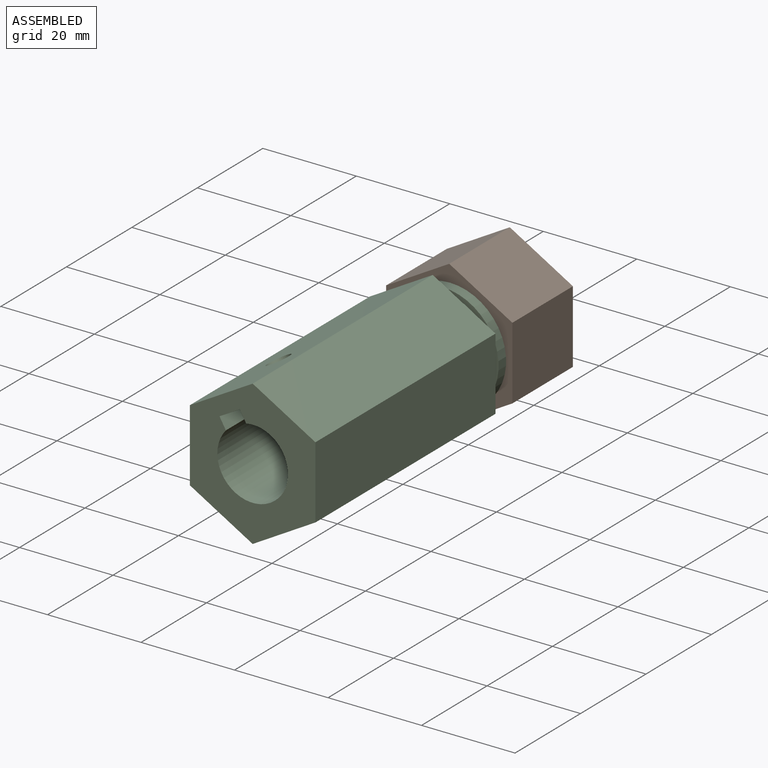
[diagram: assembled view]
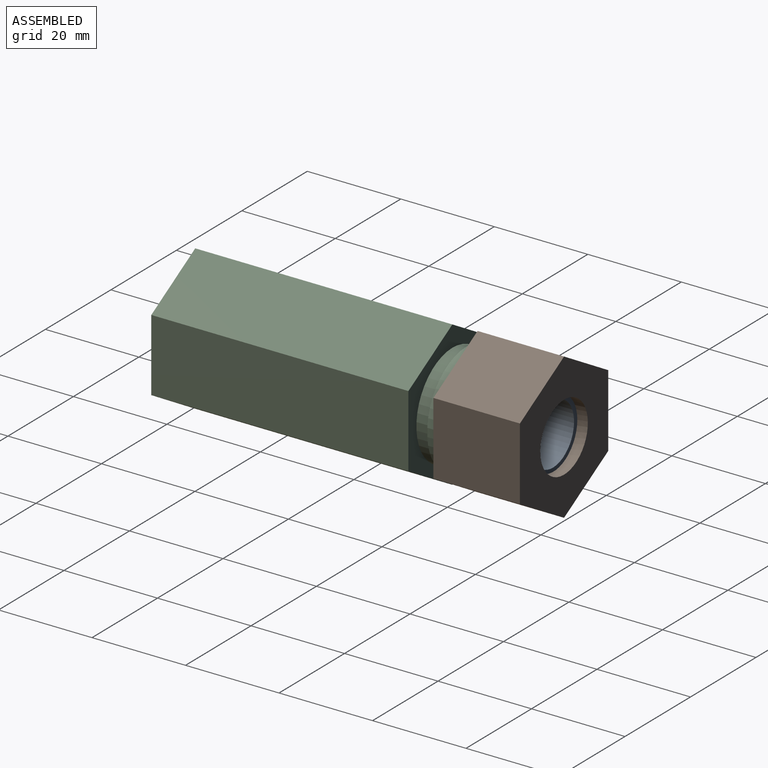
[diagram: assembled view, second angle]
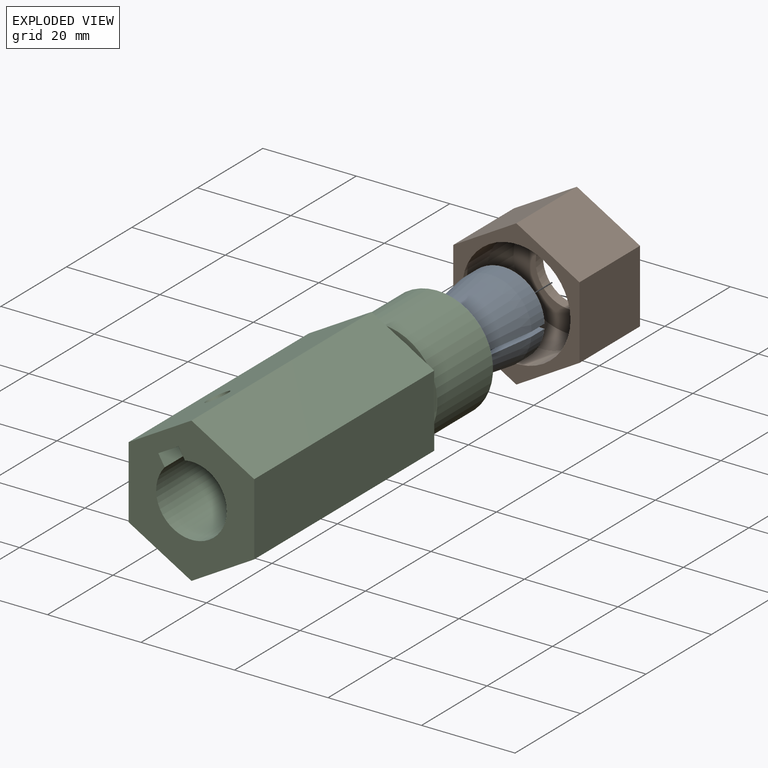
[diagram: exploded view]
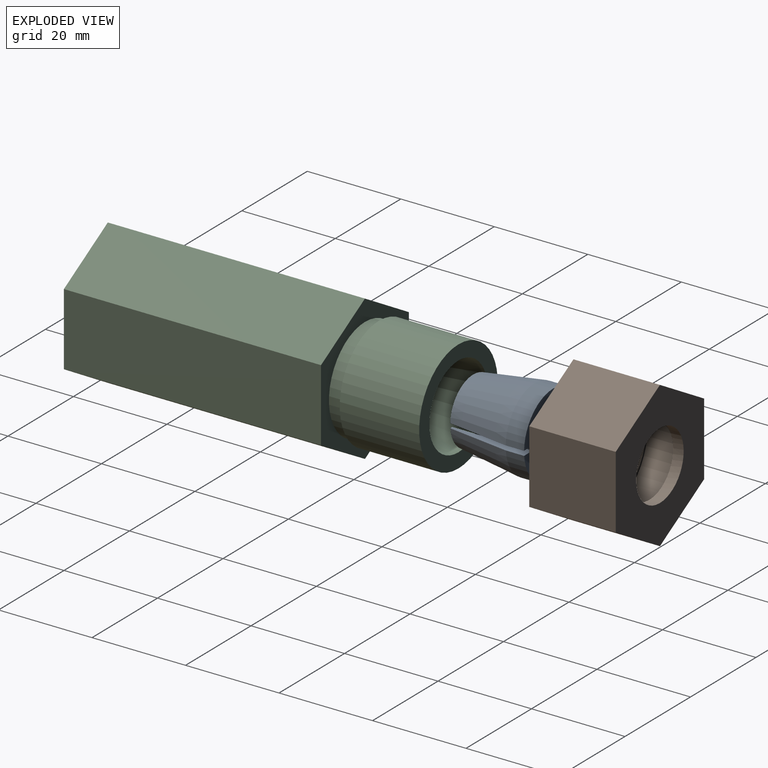
[diagram: exploded view, second angle]
ASSEMBLY  parts=3 mates=3
PART A: 7 faces, bbox 17.1x17.7x17.7 mm
  f0: plane 14x13.98mm, normal (-1,0,0), area 24.1mm2, adj f1,f3,f5,f6
  f1: cylinder r=6.41mm len=17.1mm, axis (-1,0,0), area 672mm2, adj f0,f4,f5,f6
  f2: cylinder r=8.85mm len=17.7mm, axis (-1,0,0), area 215mm2, adj f3,f4,f5,f6
  f3: cone r=8.85mm half-angle=8deg, axis (1,0,0), area 648.5mm2, adj f0,f2,f5,f6
  f4: plane 17.7x17.69mm, normal (1,0,0), area 114.4mm2, adj f1,f2,f5,f6
  f5: plane 17.11x2.46mm, normal (0,-1,0), area 29.5mm2, adj f0,f1,f2,f3,f4
  f6: plane 17.11x2.46mm, normal (0,1,0), area 29.5mm2, adj f0,f1,f2,f3,f4
PART B: 13 faces, bbox 31.2x18.5x27 mm
  f0: plane 18.5x15.59mm, normal (0,0,1), area 288.4mm2, adj f1,f5,f6,f7
  f1: plane 18.5x13.5mm, normal (-0.87,0,0.5), area 288.4mm2, adj f0,f2,f6,f7
  f2: plane 18.5x13.5mm, normal (-0.87,0,-0.5), area 288.4mm2, adj f1,f3,f6,f7
  f3: plane 18.5x15.59mm, normal (0,0,-1), area 288.4mm2, adj f2,f4,f6,f7
  f4: plane 18.5x13.5mm, normal (0.87,0,-0.5), area 288.4mm2, adj f3,f5,f6,f7
  f5: plane 18.5x13.5mm, normal (0.87,0,0.5), area 288.4mm2, adj f0,f4,f6,f7
  f6: plane 31.18x27mm, normal (0,-1,0), area 466.2mm2, adj f0,f1,f2,f3,f4,f5,f8
  f7: plane 31.18x27mm, normal (0,1,0), area 210.3mm2, adj f0,f1,f2,f3,f4,f5,f10
  f8: cylinder r=7.25mm len=14.5mm, axis (0,-1,0), area 102.5mm2, adj f6,f9
  f9: plane 24x24mm, normal (0,1,0), area 287.3mm2, adj f8,f12
  f10: cylinder r=11.58mm len=23.15mm, axis (0,1,0), area 545.6mm2, adj f7,f11
  f11: plane 24x24mm, normal (0,-1,0), area 31.3mm2, adj f10,f12
  f12: cylinder r=12mm len=24mm, axis (0,1,0), area 659.7mm2, adj f9,f11
PART C: 22 faces, bbox 26.8x75x31 mm
  f0: plane 17.5x4.33mm, normal (0.5,0,-0.87), area 77.7mm2, adj f1,f14,f15,f20
  f1: plane 31x26.85mm, normal (0,-1,0), area 432.6mm2, adj f0,f2,f8,f9,f10,f11,f12,f13
  f2: cylinder r=7.56mm len=40mm, axis (0,1,0), area 1720.9mm2, adj f1,f14,f15,f16,f19
  f3: plane 31x26.85mm, normal (0,1,0), area 244.1mm2, adj f5,f8,f9,f10,f11,f12,f13
  f4: cylinder r=12mm len=24mm, axis (0,-1,0), area 1281.8mm2, adj f6,f7
  f5: cylinder r=11mm len=22mm, axis (0,-1,0), area 207.3mm2, adj f3,f6
  f6: plane 24x24mm, normal (0,-1,0), area 72.3mm2, adj f4,f5
  f7: plane 24x24mm, normal (0,1,0), area 204.9mm2, adj f4,f21
  f8: plane 55x13.42mm, normal (-0.5,0,0.87), area 832.9mm2, adj f1,f3,f9,f13,f20
  f9: plane 55x15.5mm, normal (-1,0,0), area 852.5mm2, adj f1,f3,f8,f10
  f10: plane 55x13.42mm, normal (-0.5,0,-0.87), area 852.5mm2, adj f1,f3,f9,f11
  f11: plane 55x13.42mm, normal (0.5,0,-0.87), area 852.5mm2, adj f1,f3,f10,f12
  f12: plane 55x15.5mm, normal (1,0,0), area 852.5mm2, adj f1,f3,f11,f13
  f13: plane 55x13.42mm, normal (0.5,0,0.87), area 852.5mm2, adj f1,f3,f8,f12
  f14: plane 35x2.36mm, normal (-0.87,0,-0.5), area 95.4mm2, adj f0,f1,f2,f16,f17
  f15: plane 35x2.36mm, normal (0.87,0,0.5), area 95.4mm2, adj f0,f1,f2,f16,f17
  f16: plane 5.69x4.86mm, normal (0,-1,0), area 12.2mm2, adj f2,f14,f15,f17
  f17: plane 17.5x4.33mm, normal (0.5,0,-0.87), area 77.7mm2, adj f14,f15,f16,f20
  f18: cylinder r=6.35mm len=17.03mm, axis (0,1,0), area 679.6mm2, adj f19,f21
  f19: plane 15.11x15.11mm, normal (0,-1,0), area 52.7mm2, adj f2,f18
  f20: cylinder r=2.5mm len=6.11mm, axis (-0.5,0,0.87), area 56mm2, adj f0,f8,f17
  f21: cone r=8.88mm half-angle=8deg, axis (0,1,0), area 867.8mm2, adj f7,f18
PLACE A rot(axis=(0.58,0.58,0.56),121.1deg) t=(-25.62,1.57,-0.92)mm
PLACE B rot(axis=(0.97,0,-0.26),180deg) t=(-25.78,2.42,-0.91)mm
PLACE C t=(-25.62,17.13,-0.92)mm fixed
MATE revolute A.f1 <-> C.f2  axis (0,1,0) through (-25.62,8.15,-0.92)mm
MATE planar B.f3 <-> C.f13  axis (0.5,0,0.87) through (-19.03,11.67,10.78)mm
MATE revolute B.f8 <-> A.f4  axis (0,-1,0) through (-25.78,18.67,-0.91)mm
